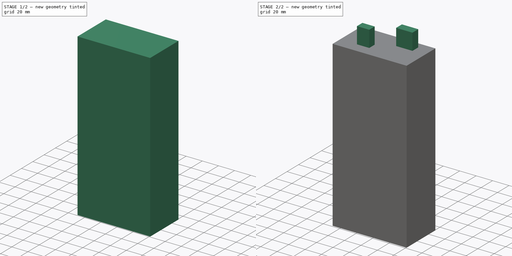
[diagram: build sequence overview — one tinted view per stage of 2, left to right]
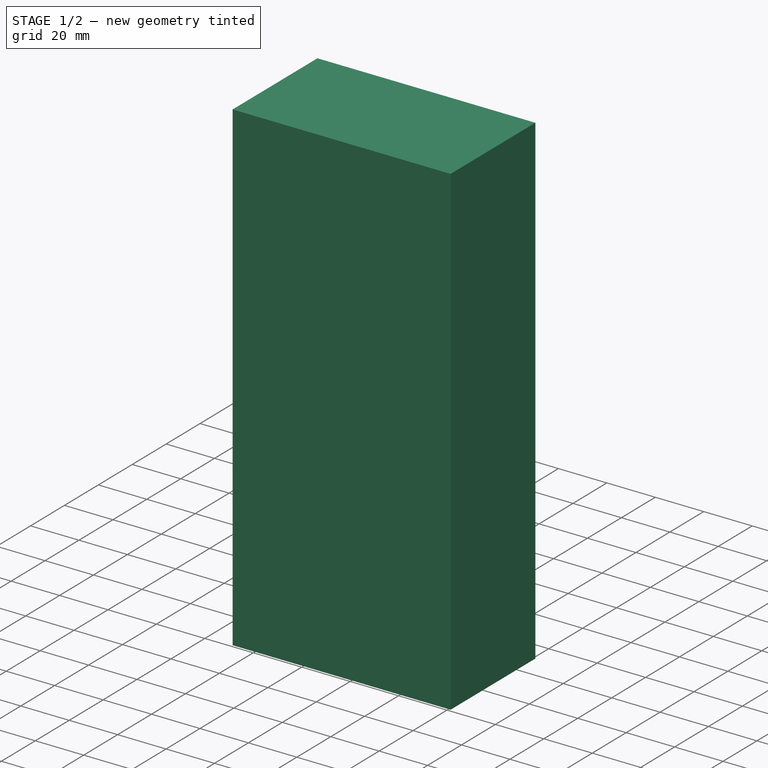
[diagram: stage 1 of 2 — iso view after this stage's code; geometry added in this stage tinted green]
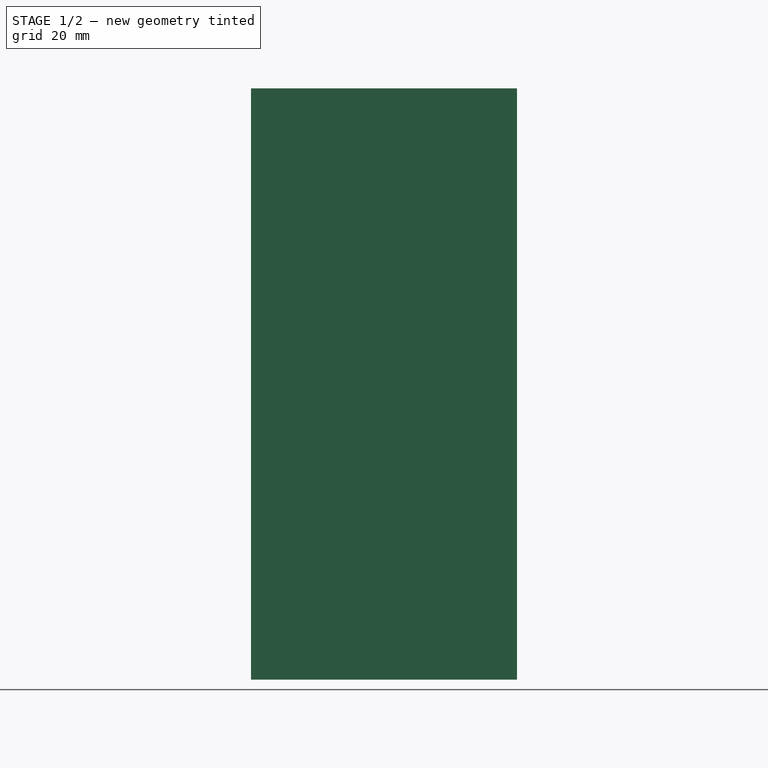
[diagram: stage 1 of 2 — front view after this stage's code; geometry added in this stage tinted green]
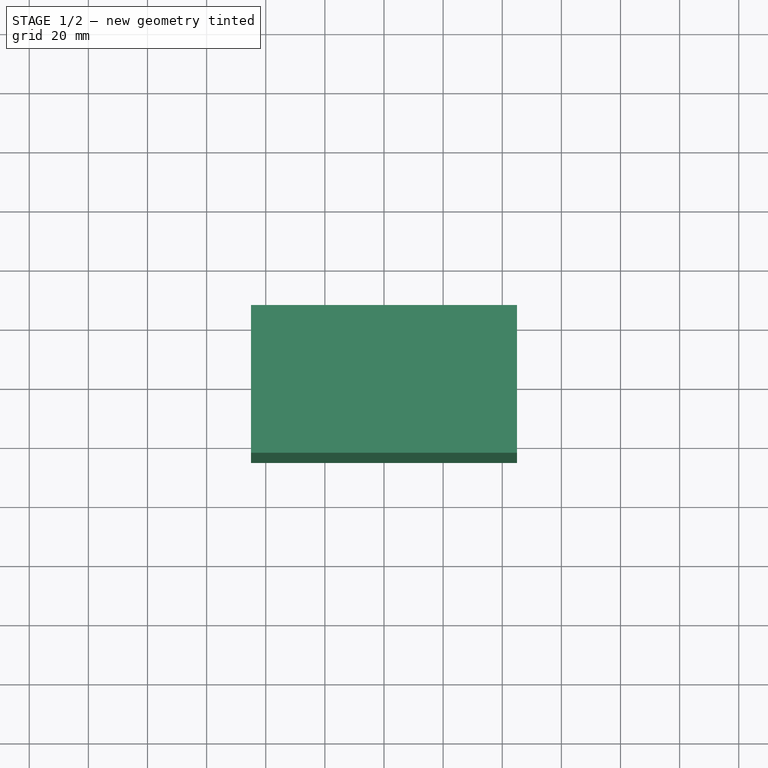
[diagram: stage 1 of 2 — top view after this stage's code; geometry added in this stage tinted green]
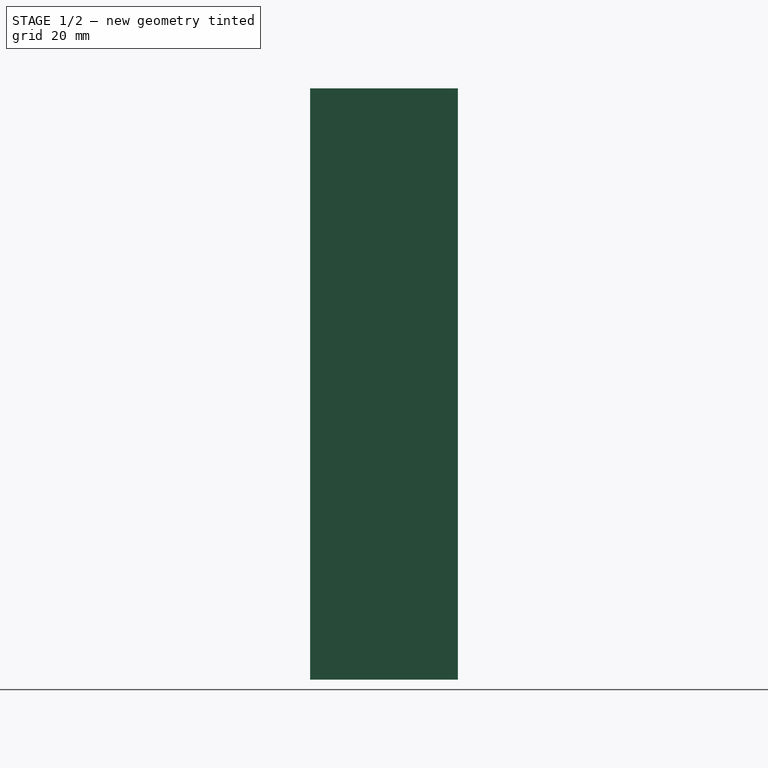
[diagram: stage 1 of 2 — right view after this stage's code; geometry added in this stage tinted green]
FCSTD DOCUMENT  (FreeCAD 0.16R6698 (Git))
Label: PSU serveur
License: All rights reserved
LicenseURL: http://en.wikipedia.org/wiki/All_rights_reserved
objects: Sketcher::SketchObject×2, PartDesign::Pad×2
note: 6 computed .brp shape members not serialized (recipe doc carries the construction recipe); baked Part::Feature solids carry a one-line shape summary decoded from their .brp

FEATURE [Sketcher::SketchObject] Sketch
  sketch-geometry (4):
    g0: LineSegment StartX=-45 StartY=25 StartZ=0 EndX=45 EndY=25 EndZ=0
    g1: LineSegment StartX=45 StartY=25 StartZ=0 EndX=45 EndY=-25 EndZ=0
    g2: LineSegment StartX=45 StartY=-25 StartZ=0 EndX=-45 EndY=-25 EndZ=0
    g3: LineSegment StartX=-45 StartY=-25 StartZ=0 EndX=-45 EndY=25 EndZ=0
  constraints (12):
    c: Coincident(g0,g1)
    c: Coincident(g1,g2)
    c: Coincident(g2,g3)
    c: Coincident(g3,g0)
    c: Horizontal(g0)
    c: Horizontal(g2)
    c: Vertical(g1)
    c: Vertical(g3)
    c: DistanceX(g0,g0) = 90
    c: DistanceY(g1,g1) = 50
    c: DistanceY(g1,g-1) = 25
    c: DistanceX(g-1,g0) = 45
FEATURE [PartDesign::Pad] Pad
  Length = 200
  Length2 = 100
  Sketch = -> Sketch
  Type = 0
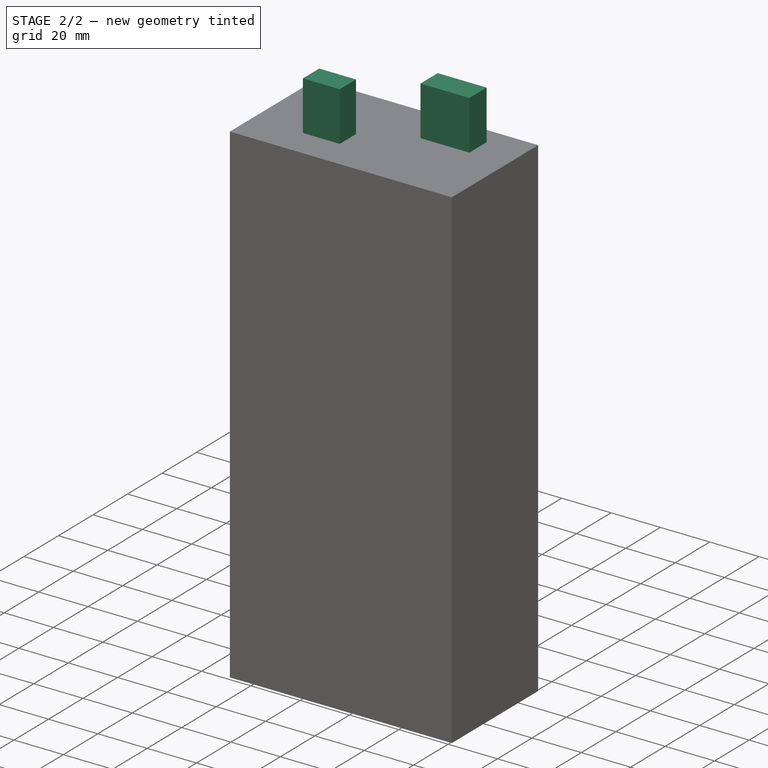
[diagram: stage 2 of 2 — iso view after this stage's code; geometry added in this stage tinted green]
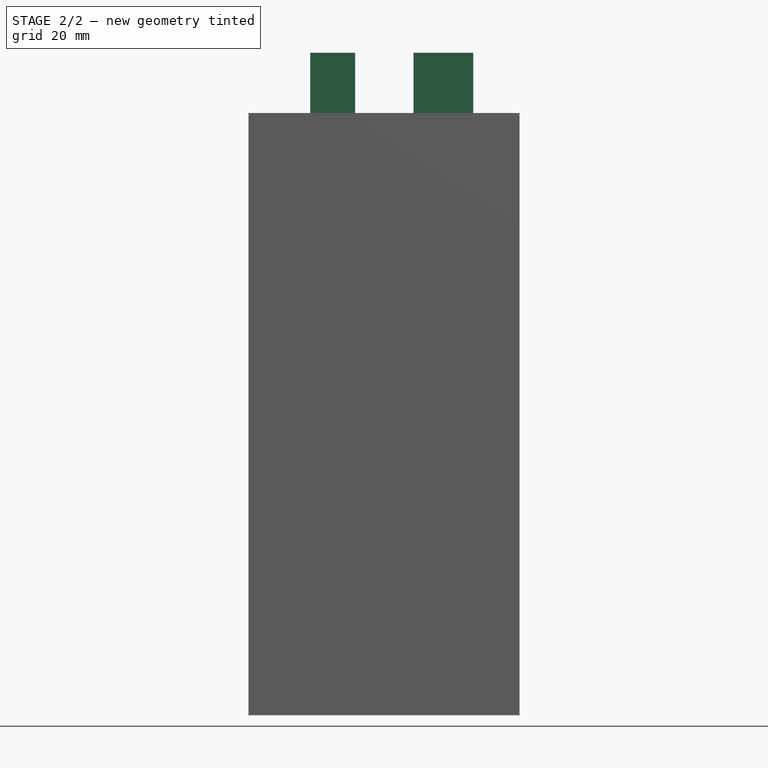
[diagram: stage 2 of 2 — front view after this stage's code; geometry added in this stage tinted green]
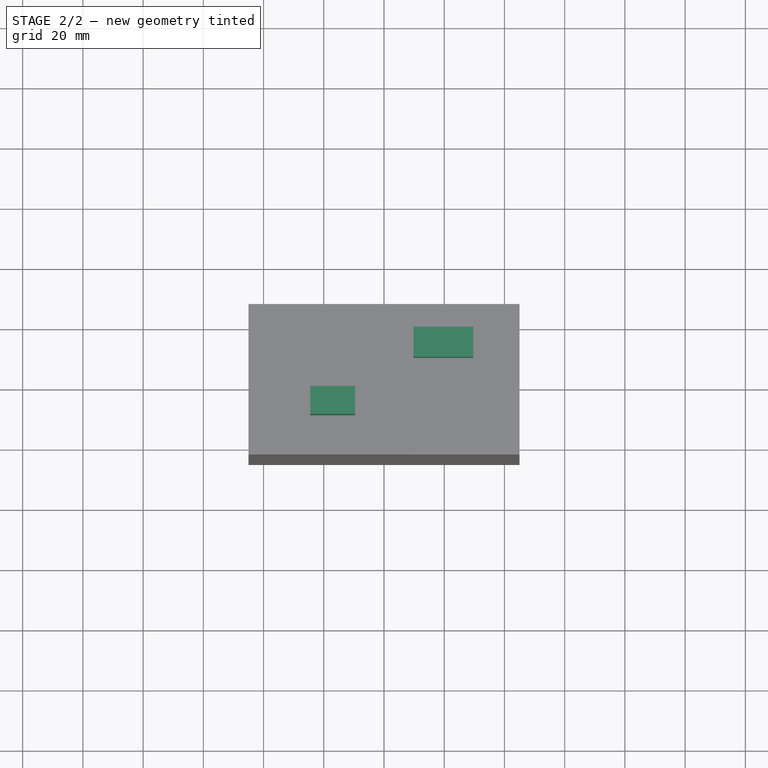
[diagram: stage 2 of 2 — top view after this stage's code; geometry added in this stage tinted green]
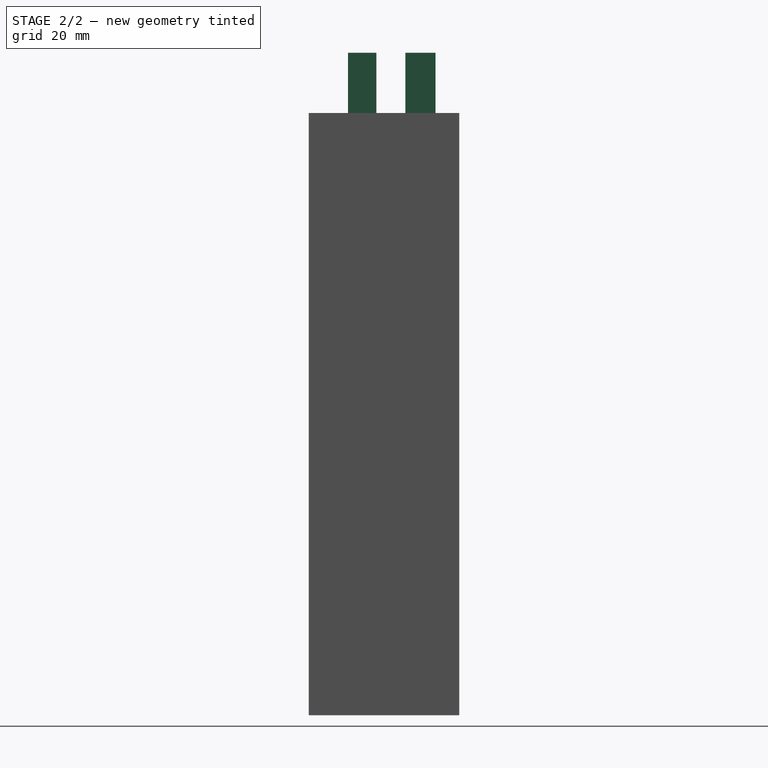
[diagram: stage 2 of 2 — right view after this stage's code; geometry added in this stage tinted green]
FEATURE [Sketcher::SketchObject] Sketch001
  Placement = pos=(0,0,200) rot=(0,0,1;0rad)
  Support = -> Pad [Face6]
  sketch-geometry (8):
    g0: LineSegment StartX=9.80602 StartY=17.1207 StartZ=0 EndX=29.6352 EndY=17.1207 EndZ=0
    g1: LineSegment StartX=29.6352 StartY=17.1207 StartZ=0 EndX=29.6352 EndY=7.0971 EndZ=0
    g2: LineSegment StartX=29.6352 StartY=7.0971 StartZ=0 EndX=9.80602 EndY=7.0971 EndZ=0
    g3: LineSegment StartX=9.80602 StartY=7.0971 StartZ=0 EndX=9.80602 EndY=17.1207 EndZ=0
    g4: LineSegment StartX=-24.5031 StartY=-2.5263 StartZ=0 EndX=-9.57675 EndY=-2.5263 EndZ=0
    g5: LineSegment StartX=-9.57675 StartY=-2.5263 StartZ=0 EndX=-9.57675 EndY=-11.9453 EndZ=0
    g6: LineSegment StartX=-9.57675 StartY=-11.9453 StartZ=0 EndX=-24.5031 EndY=-11.9453 EndZ=0
    g7: LineSegment StartX=-24.5031 StartY=-11.9453 StartZ=0 EndX=-24.5031 EndY=-2.5263 EndZ=0
  constraints (16):
    c: Coincident(g0,g1)
    c: Coincident(g1,g2)
    c: Coincident(g2,g3)
    c: Coincident(g3,g0)
    c: Horizontal(g0)
    c: Horizontal(g2)
    c: Vertical(g1)
    c: Vertical(g3)
    c: Coincident(g4,g5)
    c: Coincident(g5,g6)
    c: Coincident(g6,g7)
    c: Coincident(g7,g4)
    c: Horizontal(g4)
    c: Horizontal(g6)
    c: Vertical(g5)
    c: Vertical(g7)
FEATURE [PartDesign::Pad] Pad001
  Length = 20
  Length2 = 100
  Sketch = -> Sketch001
  Type = 0
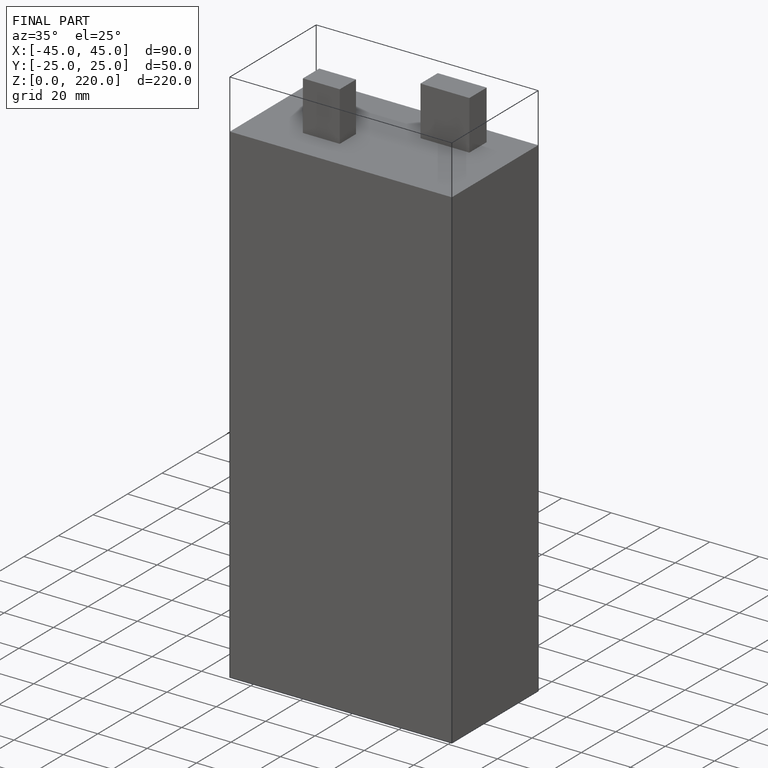
[diagram: finished part — iso view with bounding-box wireframe]
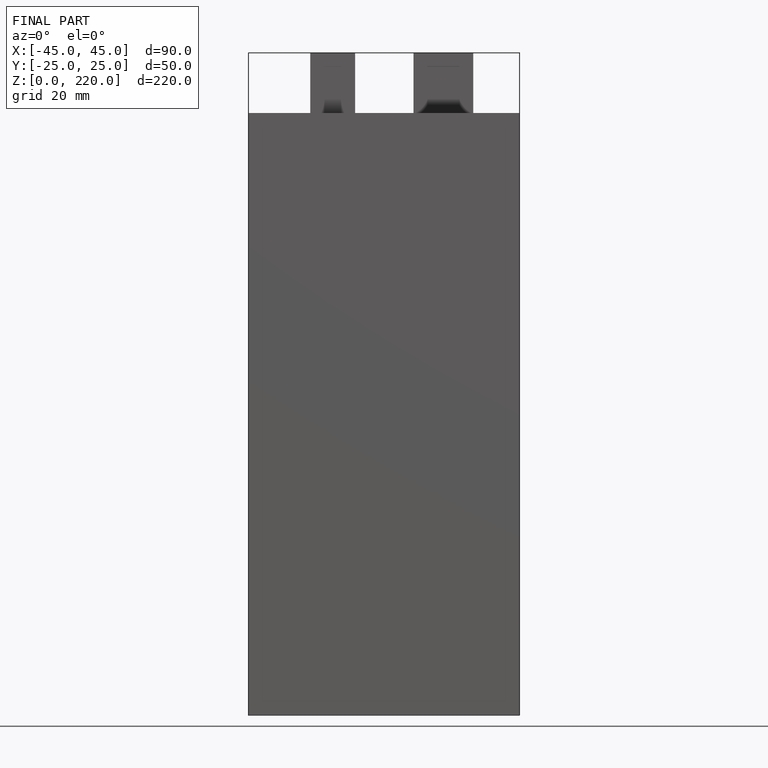
[diagram: finished part — front view with bounding-box wireframe]
